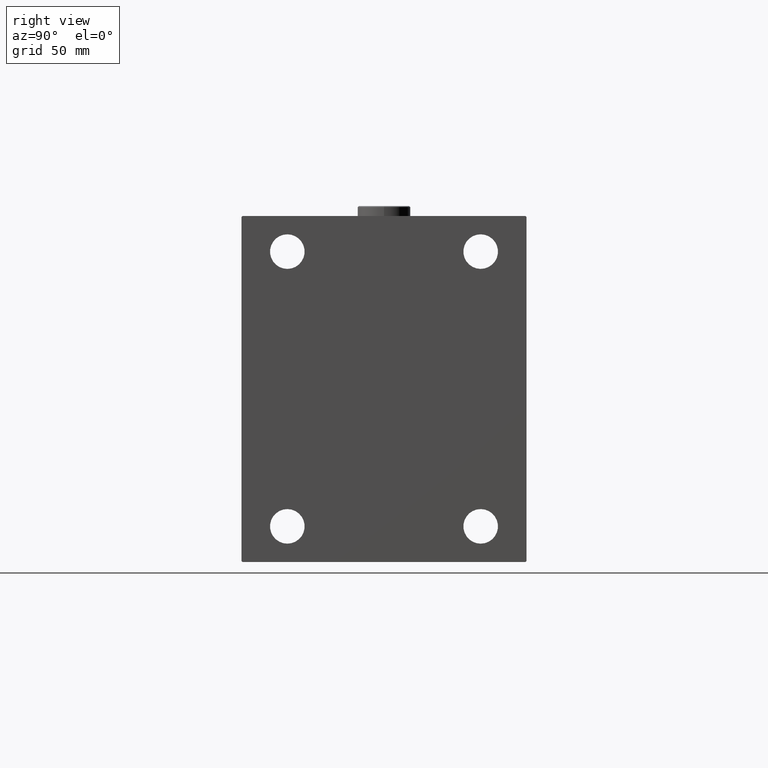
[diagram: clean part render]
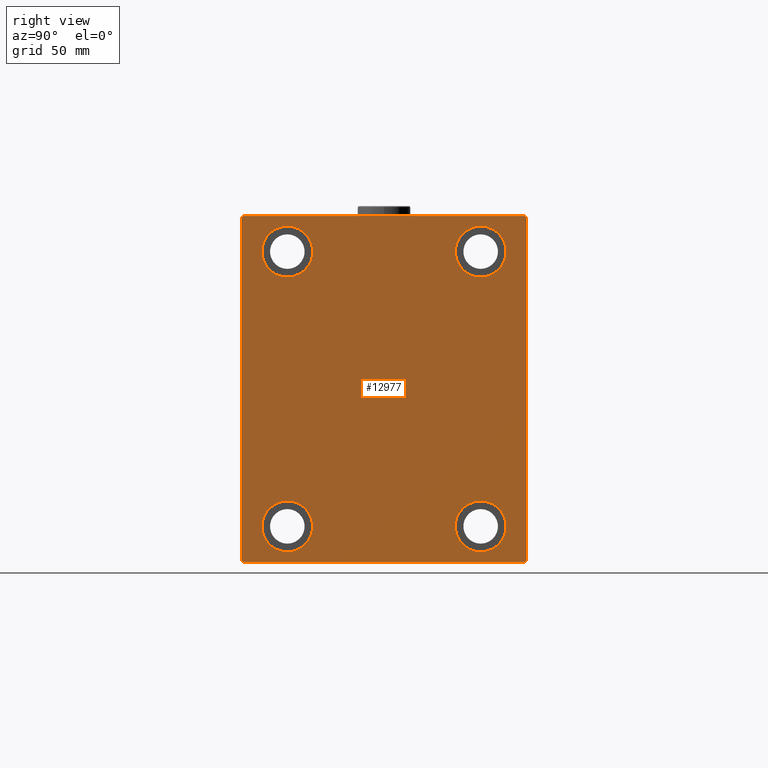
[diagram: same view with one face highlighted and labeled with its STEP entity id]
A machine part, right view. The second image highlights one B-rep face of the part: STEP entity #12977.
In plain terms, the highlighted planar face has unit normal (1, 0, 0).
Its self-contained STEP definition (entity closure, byte-faithful):
#522 = CARTESIAN_POINT ( 'NONE',  ( 145.0000000000000000, -47.49999999999999289, -80.00000000000000000 ) ) ;
#751 = DIRECTION ( 'NONE',  ( -0.000000000000000000, 0.7071067811865769936, 0.7071067811865181518 ) ) ;
#970 = CARTESIAN_POINT ( 'NONE',  ( 145.0000000000000000, -47.49999999999997868, 67.50000000000000000 ) ) ;
#1115 = CARTESIAN_POINT ( 'NONE',  ( 145.0000000000000000, 70.00000000000002842, -85.00000000000001421 ) ) ;
#1232 = EDGE_CURVE ( 'NONE', #47208, #5666, #40071, .T. ) ;
#2215 = VECTOR ( 'NONE', #23096, 1000.000000000000000 ) ;
#2293 = CARTESIAN_POINT ( 'NONE',  ( 145.0000000000000000, -77.25000000000099476, -77.24999999999884892 ) ) ;
#2321 = CARTESIAN_POINT ( 'NONE',  ( 145.0000000000000000, -69.49999999999998579, 84.99999999999998579 ) ) ;
#2469 = CARTESIAN_POINT ( 'NONE',  ( 145.0000000000000000, 70.00000000000001421, 85.00000000000000000 ) ) ;
#2707 = CIRCLE ( 'NONE', #8135, 12.49999999999999645 ) ;
#2765 = ORIENTED_EDGE ( 'NONE', *, *, #46802, .T. ) ;
#3297 = EDGE_CURVE ( 'NONE', #4957, #19331, #27620, .T. ) ;
#4018 = DIRECTION ( 'NONE',  ( 0.000000000000000000, 0.000000000000000000, 1.000000000000000000 ) ) ;
#4957 = VERTEX_POINT ( 'NONE', #14634 ) ;
#4989 = VECTOR ( 'NONE', #5970, 1000.000000000000000 ) ;
#5042 = EDGE_CURVE ( 'NONE', #16117, #45634, #19933, .T. ) ;
#5666 = VERTEX_POINT ( 'NONE', #25124 ) ;
#5853 = CARTESIAN_POINT ( 'NONE',  ( 145.0000000000000000, 47.50000000000000711, -67.50000000000000000 ) ) ;
#5875 = LINE ( 'NONE', #31346, #23349 ) ;
#5950 = AXIS2_PLACEMENT_3D ( 'NONE', #5853, #12660, #35702 ) ;
#5970 = DIRECTION ( 'NONE',  ( 0.000000000000000000, -8.163404592832031500E-17, 1.000000000000000000 ) ) ;
#6277 = VERTEX_POINT ( 'NONE', #42691 ) ;
#6325 = AXIS2_PLACEMENT_3D ( 'NONE', #970, #36925, #33514 ) ;
#6589 = DIRECTION ( 'NONE',  ( -1.000000000000000000, -0.000000000000000000, -0.000000000000000000 ) ) ;
#6685 = EDGE_LOOP ( 'NONE', ( #19918, #29905 ) ) ;
#6838 = LINE ( 'NONE', #2469, #35921 ) ;
#7191 = DIRECTION ( 'NONE',  ( 0.000000000000000000, 0.000000000000000000, -1.000000000000000000 ) ) ;
#7422 = DIRECTION ( 'NONE',  ( -1.000000000000000000, -0.000000000000000000, -0.000000000000000000 ) ) ;
#7573 = DIRECTION ( 'NONE',  ( -1.000000000000000000, -0.000000000000000000, -0.000000000000000000 ) ) ;
#8135 = AXIS2_PLACEMENT_3D ( 'NONE', #30870, #23365, #12900 ) ;
#8314 = DIRECTION ( 'NONE',  ( -0.000000000000000000, -0.7071067811865574537, 0.7071067811865376918 ) ) ;
#9353 = CARTESIAN_POINT ( 'NONE',  ( 145.0000000000000000, 47.50000000000000711, 67.50000000000000000 ) ) ;
#9373 = LINE ( 'NONE', #1115, #4989 ) ;
#9949 = ORIENTED_EDGE ( 'NONE', *, *, #36398, .T. ) ;
#10426 = EDGE_LOOP ( 'NONE', ( #35085, #33889 ) ) ;
#10834 = FACE_OUTER_BOUND ( 'NONE', #35254, .T. ) ;
#12219 = EDGE_CURVE ( 'NONE', #30902, #16117, #45195, .T. ) ;
#12660 = DIRECTION ( 'NONE',  ( -1.000000000000000000, -0.000000000000000000, -0.000000000000000000 ) ) ;
#12900 = DIRECTION ( 'NONE',  ( 0.000000000000000000, 0.000000000000000000, 1.000000000000000000 ) ) ;
#12977 = ADVANCED_FACE ( 'NONE', ( #18112, #32898, #14722, #14479, #10834 ), #25627, .T. ) ;
#13720 = DIRECTION ( 'NONE',  ( -0.000000000000000000, 0.7071067811865376918, -0.7071067811865573427 ) ) ;
#14479 = FACE_BOUND ( 'NONE', #6685, .T. ) ;
#14634 = CARTESIAN_POINT ( 'NONE',  ( 145.0000000000000000, 47.50000000000000711, -80.00000000000000000 ) ) ;
#14722 = FACE_BOUND ( 'NONE', #44161, .T. ) ;
#15357 = AXIS2_PLACEMENT_3D ( 'NONE', #47879, #7573, #47391 ) ;
#15621 = LINE ( 'NONE', #41341, #29045 ) ;
#15771 = DIRECTION ( 'NONE',  ( -1.000000000000000000, -0.000000000000000000, -0.000000000000000000 ) ) ;
#15828 = CARTESIAN_POINT ( 'NONE',  ( 145.0000000000000000, -69.99999999999998579, -85.00000000000002842 ) ) ;
#16117 = VERTEX_POINT ( 'NONE', #46270 ) ;
#16157 = CARTESIAN_POINT ( 'NONE',  ( 145.0000000000000000, -47.49999999999999289, -55.00000000000000711 ) ) ;
#16563 = CIRCLE ( 'NONE', #41350, 12.50000000000001066 ) ;
#16666 = VERTEX_POINT ( 'NONE', #522 ) ;
#16993 = CARTESIAN_POINT ( 'NONE',  ( 145.0000000000000000, 47.50000000000000711, -55.00000000000000711 ) ) ;
#17357 = LINE ( 'NONE', #2293, #34083 ) ;
#17395 = CARTESIAN_POINT ( 'NONE',  ( 145.0000000000000000, 0.000000000000000000, 0.000000000000000000 ) ) ;
#17842 = ORIENTED_EDGE ( 'NONE', *, *, #40669, .T. ) ;
#18112 = FACE_BOUND ( 'NONE', #10426, .T. ) ;
#18969 = EDGE_CURVE ( 'NONE', #31036, #47208, #5875, .T. ) ;
#19279 = EDGE_CURVE ( 'NONE', #6277, #39692, #43548, .T. ) ;
#19331 = VERTEX_POINT ( 'NONE', #16993 ) ;
#19918 = ORIENTED_EDGE ( 'NONE', *, *, #25475, .T. ) ;
#19933 = LINE ( 'NONE', #41790, #41656 ) ;
#19969 = DIRECTION ( 'NONE',  ( 0.000000000000000000, -0.7071067811865671127, -0.7071067811865279218 ) ) ;
#20214 = CARTESIAN_POINT ( 'NONE',  ( 145.0000000000000000, 70.00000000000001421, 84.50000000000007105 ) ) ;
#20590 = VERTEX_POINT ( 'NONE', #44921 ) ;
#21901 = CIRCLE ( 'NONE', #27320, 12.49999999999999645 ) ;
#22162 = CARTESIAN_POINT ( 'NONE',  ( 145.0000000000000000, -47.49999999999999289, -67.50000000000000000 ) ) ;
#22199 = ORIENTED_EDGE ( 'NONE', *, *, #19279, .T. ) ;
#23096 = DIRECTION ( 'NONE',  ( 0.000000000000000000, 1.000000000000000000, 9.912705577010325549E-17 ) ) ;
#23349 = VECTOR ( 'NONE', #19969, 1000.000000000000000 ) ;
#23365 = DIRECTION ( 'NONE',  ( -1.000000000000000000, -0.000000000000000000, -0.000000000000000000 ) ) ;
#23633 = EDGE_LOOP ( 'NONE', ( #22199, #23816 ) ) ;
#23718 = CIRCLE ( 'NONE', #43898, 12.49999999999999645 ) ;
#23816 = ORIENTED_EDGE ( 'NONE', *, *, #42815, .T. ) ;
#25124 = CARTESIAN_POINT ( 'NONE',  ( 145.0000000000000000, -69.99999999999998579, -84.50000000000004263 ) ) ;
#25475 = EDGE_CURVE ( 'NONE', #16666, #38198, #21901, .T. ) ;
#25627 = PLANE ( 'NONE',  #48088 ) ;
#27075 = VERTEX_POINT ( 'NONE', #20214 ) ;
#27320 = AXIS2_PLACEMENT_3D ( 'NONE', #22162, #44022, #44265 ) ;
#27533 = EDGE_CURVE ( 'NONE', #20590, #39179, #16563, .T. ) ;
#27620 = CIRCLE ( 'NONE', #5950, 12.49999999999999645 ) ;
#28295 = EDGE_CURVE ( 'NONE', #28689, #31036, #6838, .T. ) ;
#28689 = VERTEX_POINT ( 'NONE', #47080 ) ;
#29045 = VECTOR ( 'NONE', #8314, 999.9999999999998863 ) ;
#29609 = CARTESIAN_POINT ( 'NONE',  ( 145.0000000000000000, 47.50000000000000711, 55.00000000000000000 ) ) ;
#29905 = ORIENTED_EDGE ( 'NONE', *, *, #38257, .T. ) ;
#30416 = EDGE_CURVE ( 'NONE', #45634, #27075, #9373, .T. ) ;
#30747 = CARTESIAN_POINT ( 'NONE',  ( 145.0000000000000000, -47.49999999999997868, 80.00000000000001421 ) ) ;
#30752 = CARTESIAN_POINT ( 'NONE',  ( 145.0000000000000000, -69.50000000000001421, -85.00000000000002842 ) ) ;
#30870 = CARTESIAN_POINT ( 'NONE',  ( 145.0000000000000000, 47.50000000000000711, -67.50000000000000000 ) ) ;
#30902 = VERTEX_POINT ( 'NONE', #30752 ) ;
#31036 = VERTEX_POINT ( 'NONE', #2321 ) ;
#31346 = CARTESIAN_POINT ( 'NONE',  ( 145.0000000000000000, -77.24999999999806732, 77.25000000000234479 ) ) ;
#32547 = CARTESIAN_POINT ( 'NONE',  ( 145.0000000000000000, -47.49999999999999289, -67.50000000000000000 ) ) ;
#32556 = DIRECTION ( 'NONE',  ( 0.000000000000000000, -1.000000000000000000, -9.912705577010325549E-17 ) ) ;
#32898 = FACE_BOUND ( 'NONE', #23633, .T. ) ;
#33514 = DIRECTION ( 'NONE',  ( 0.000000000000000000, 0.000000000000000000, 1.000000000000000000 ) ) ;
#33889 = ORIENTED_EDGE ( 'NONE', *, *, #36498, .T. ) ;
#34083 = VECTOR ( 'NONE', #13720, 1000.000000000000114 ) ;
#35085 = ORIENTED_EDGE ( 'NONE', *, *, #3297, .T. ) ;
#35254 = EDGE_LOOP ( 'NONE', ( #43464, #41814, #40782, #2765, #47499, #35762, #36497, #9949 ) ) ;
#35628 = CARTESIAN_POINT ( 'NONE',  ( 145.0000000000000000, -69.99999999999998579, 84.50000000000001421 ) ) ;
#35702 = DIRECTION ( 'NONE',  ( 0.000000000000000000, 0.000000000000000000, 1.000000000000000000 ) ) ;
#35762 = ORIENTED_EDGE ( 'NONE', *, *, #5042, .T. ) ;
#35921 = VECTOR ( 'NONE', #32556, 1000.000000000000000 ) ;
#36398 = EDGE_CURVE ( 'NONE', #27075, #28689, #15621, .T. ) ;
#36452 = DIRECTION ( 'NONE',  ( 0.000000000000000000, 0.000000000000000000, 1.000000000000000000 ) ) ;
#36497 = ORIENTED_EDGE ( 'NONE', *, *, #30416, .T. ) ;
#36498 = EDGE_CURVE ( 'NONE', #19331, #4957, #2707, .T. ) ;
#36672 = CARTESIAN_POINT ( 'NONE',  ( 145.0000000000000000, -69.99999999999998579, 84.99999999999998579 ) ) ;
#36925 = DIRECTION ( 'NONE',  ( -1.000000000000000000, -0.000000000000000000, -0.000000000000000000 ) ) ;
#37276 = CARTESIAN_POINT ( 'NONE',  ( 145.0000000000000000, 47.50000000000000711, 67.50000000000000000 ) ) ;
#38198 = VERTEX_POINT ( 'NONE', #16157 ) ;
#38257 = EDGE_CURVE ( 'NONE', #38198, #16666, #23718, .T. ) ;
#39179 = VERTEX_POINT ( 'NONE', #29609 ) ;
#39259 = CARTESIAN_POINT ( 'NONE',  ( 145.0000000000000000, 70.00000000000002842, -84.50000000000004263 ) ) ;
#39692 = VERTEX_POINT ( 'NONE', #30747 ) ;
#40071 = LINE ( 'NONE', #36672, #43869 ) ;
#40316 = DIRECTION ( 'NONE',  ( 0.000000000000000000, 0.000000000000000000, -1.000000000000000000 ) ) ;
#40452 = DIRECTION ( 'NONE',  ( 1.000000000000000000, 0.000000000000000000, 0.000000000000000000 ) ) ;
#40669 = EDGE_CURVE ( 'NONE', #39179, #20590, #40853, .T. ) ;
#40782 = ORIENTED_EDGE ( 'NONE', *, *, #1232, .T. ) ;
#40853 = CIRCLE ( 'NONE', #42399, 12.50000000000001066 ) ;
#41341 = CARTESIAN_POINT ( 'NONE',  ( 145.0000000000000000, 77.24999999999907629, 77.25000000000122213 ) ) ;
#41350 = AXIS2_PLACEMENT_3D ( 'NONE', #9353, #15771, #44888 ) ;
#41656 = VECTOR ( 'NONE', #751, 1000.000000000000000 ) ;
#41721 = CIRCLE ( 'NONE', #15357, 12.50000000000001066 ) ;
#41790 = CARTESIAN_POINT ( 'NONE',  ( 145.0000000000000000, 77.24999999999714362, -77.25000000000356692 ) ) ;
#41814 = ORIENTED_EDGE ( 'NONE', *, *, #18969, .T. ) ;
#41932 = ORIENTED_EDGE ( 'NONE', *, *, #27533, .T. ) ;
#42399 = AXIS2_PLACEMENT_3D ( 'NONE', #37276, #7422, #4018 ) ;
#42691 = CARTESIAN_POINT ( 'NONE',  ( 145.0000000000000000, -47.49999999999997868, 55.00000000000000000 ) ) ;
#42815 = EDGE_CURVE ( 'NONE', #39692, #6277, #41721, .T. ) ;
#43464 = ORIENTED_EDGE ( 'NONE', *, *, #28295, .T. ) ;
#43548 = CIRCLE ( 'NONE', #6325, 12.50000000000001066 ) ;
#43869 = VECTOR ( 'NONE', #40316, 1000.000000000000000 ) ;
#43898 = AXIS2_PLACEMENT_3D ( 'NONE', #32547, #6589, #36452 ) ;
#44022 = DIRECTION ( 'NONE',  ( -1.000000000000000000, -0.000000000000000000, -0.000000000000000000 ) ) ;
#44161 = EDGE_LOOP ( 'NONE', ( #17842, #41932 ) ) ;
#44265 = DIRECTION ( 'NONE',  ( 0.000000000000000000, 0.000000000000000000, 1.000000000000000000 ) ) ;
#44888 = DIRECTION ( 'NONE',  ( 0.000000000000000000, 0.000000000000000000, 1.000000000000000000 ) ) ;
#44921 = CARTESIAN_POINT ( 'NONE',  ( 145.0000000000000000, 47.50000000000000711, 80.00000000000001421 ) ) ;
#45195 = LINE ( 'NONE', #15828, #2215 ) ;
#45634 = VERTEX_POINT ( 'NONE', #39259 ) ;
#46270 = CARTESIAN_POINT ( 'NONE',  ( 145.0000000000000000, 69.50000000000001421, -85.00000000000001421 ) ) ;
#46802 = EDGE_CURVE ( 'NONE', #5666, #30902, #17357, .T. ) ;
#47080 = CARTESIAN_POINT ( 'NONE',  ( 145.0000000000000000, 69.50000000000007105, 85.00000000000000000 ) ) ;
#47208 = VERTEX_POINT ( 'NONE', #35628 ) ;
#47391 = DIRECTION ( 'NONE',  ( 0.000000000000000000, 0.000000000000000000, 1.000000000000000000 ) ) ;
#47499 = ORIENTED_EDGE ( 'NONE', *, *, #12219, .T. ) ;
#47879 = CARTESIAN_POINT ( 'NONE',  ( 145.0000000000000000, -47.49999999999997868, 67.50000000000000000 ) ) ;
#48088 = AXIS2_PLACEMENT_3D ( 'NONE', #17395, #40452, #7191 ) ;